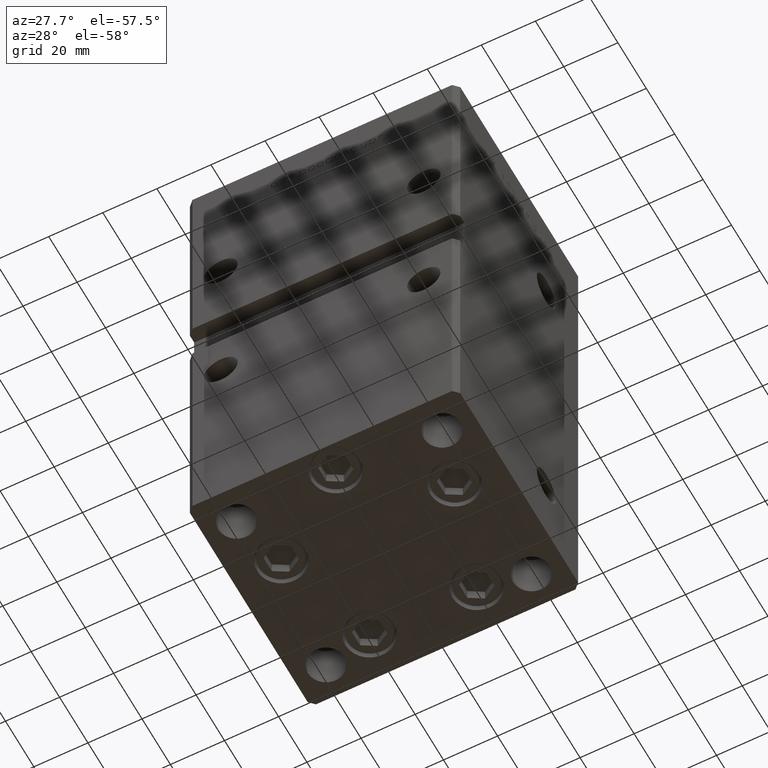
[diagram: clean part render]
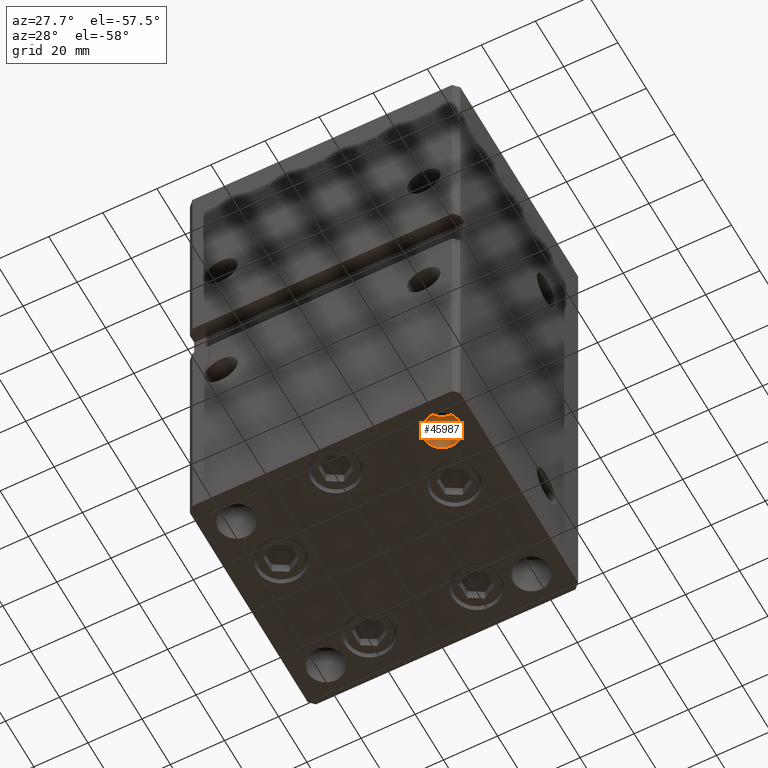
[diagram: same view with one face highlighted and labeled with its STEP entity id]
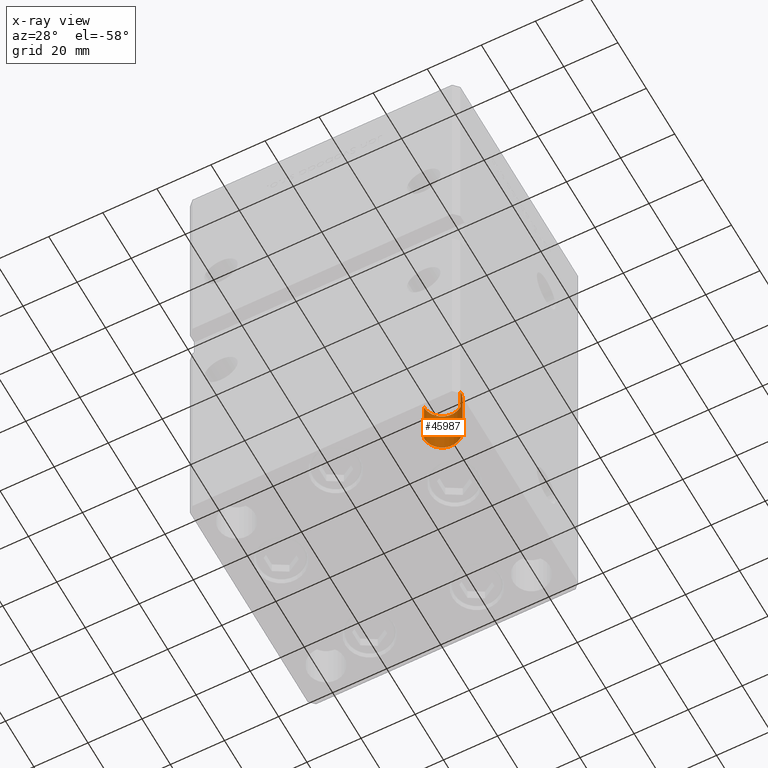
[diagram: x-ray of the same camera — body ghosted, the highlighted face saturated]
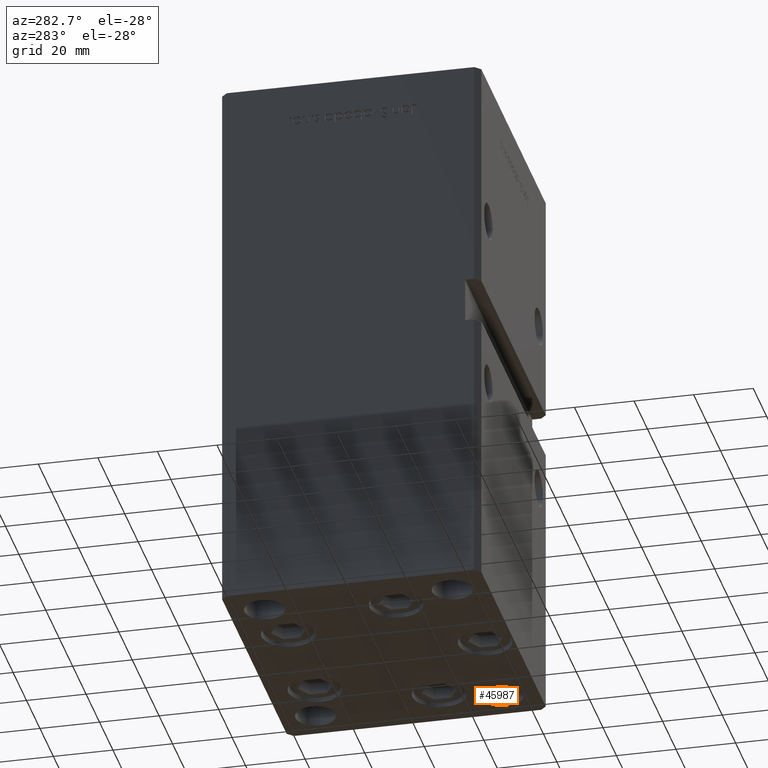
[diagram: same view with one face highlighted and labeled with its STEP entity id]
A machine part, auxiliary view. The second image highlights one B-rep face of the part: STEP entity #45987.
The next image is the same camera in x-ray: the body ghosted, the highlighted face saturated — about 0% of this face is hidden behind the body in this view.
A second angle (auxiliary view) of the same face is appended — the face is thin or edge-on in the first view.
In plain terms, the highlighted cylindrical surface (edge-blend (fillet) strip) has radius 6.75 mm, axis along (0, 0, -1).
Its self-contained STEP definition (entity closure, byte-faithful):
#2560 = CIRCLE ( 'NONE', #35195, 6.749999999999999112 ) ;
#5877 = VECTOR ( 'NONE', #27565, 1000.000000000000000 ) ;
#6625 = DIRECTION ( 'NONE',  ( 0.000000000000000000, -0.000000000000000000, -1.000000000000000000 ) ) ;
#8047 = CARTESIAN_POINT ( 'NONE',  ( -44.74999999999999289, -31.50000000000000000, -19.00000000000000000 ) ) ;
#10931 = DIRECTION ( 'NONE',  ( 1.000000000000000000, 0.000000000000000000, 0.000000000000000000 ) ) ;
#11705 = EDGE_CURVE ( 'NONE', #51971, #19983, #22985, .T. ) ;
#14407 = AXIS2_PLACEMENT_3D ( 'NONE', #15750, #52027, #27584 ) ;
#14447 = AXIS2_PLACEMENT_3D ( 'NONE', #39683, #31633, #19787 ) ;
#15230 = CYLINDRICAL_SURFACE ( 'NONE', #14447, 6.749999999999999112 ) ;
#15750 = CARTESIAN_POINT ( 'NONE',  ( -37.99999999999999289, -31.50000000000000000, -19.00000000000000000 ) ) ;
#15990 = LINE ( 'NONE', #48256, #5877 ) ;
#17079 = EDGE_LOOP ( 'NONE', ( #37198, #51014, #42515, #19190 ) ) ;
#17768 = EDGE_CURVE ( 'NONE', #51971, #39102, #15990, .T. ) ;
#19190 = ORIENTED_EDGE ( 'NONE', *, *, #21285, .F. ) ;
#19787 = DIRECTION ( 'NONE',  ( 1.000000000000000000, 0.000000000000000000, 0.000000000000000000 ) ) ;
#19788 = CARTESIAN_POINT ( 'NONE',  ( -37.99999999999999289, -31.50000000000000000, 0.000000000000000000 ) ) ;
#19983 = VERTEX_POINT ( 'NONE', #31755 ) ;
#20879 = DIRECTION ( 'NONE',  ( -0.000000000000000000, -0.000000000000000000, 1.000000000000000000 ) ) ;
#21285 = EDGE_CURVE ( 'NONE', #39102, #51776, #2560, .T. ) ;
#22985 = CIRCLE ( 'NONE', #14407, 6.749999999999999112 ) ;
#24051 = CARTESIAN_POINT ( 'NONE',  ( -44.74999999999999289, -31.50000000000000000, 0.000000000000000000 ) ) ;
#26362 = CARTESIAN_POINT ( 'NONE',  ( -31.24999999999999289, -31.50000000000000000, 0.000000000000000000 ) ) ;
#27565 = DIRECTION ( 'NONE',  ( -0.000000000000000000, -0.000000000000000000, 1.000000000000000000 ) ) ;
#27584 = DIRECTION ( 'NONE',  ( -1.000000000000000000, 0.000000000000000000, 0.000000000000000000 ) ) ;
#29217 = LINE ( 'NONE', #53147, #35783 ) ;
#31633 = DIRECTION ( 'NONE',  ( -0.000000000000000000, -0.000000000000000000, 1.000000000000000000 ) ) ;
#31755 = CARTESIAN_POINT ( 'NONE',  ( -31.24999999999999289, -31.50000000000000000, -19.00000000000000000 ) ) ;
#35195 = AXIS2_PLACEMENT_3D ( 'NONE', #19788, #6625, #10931 ) ;
#35783 = VECTOR ( 'NONE', #20879, 1000.000000000000000 ) ;
#37198 = ORIENTED_EDGE ( 'NONE', *, *, #17768, .F. ) ;
#39102 = VERTEX_POINT ( 'NONE', #24051 ) ;
#39683 = CARTESIAN_POINT ( 'NONE',  ( -37.99999999999999289, -31.50000000000000000, -19.00000000000000000 ) ) ;
#40863 = EDGE_CURVE ( 'NONE', #19983, #51776, #29217, .T. ) ;
#42515 = ORIENTED_EDGE ( 'NONE', *, *, #40863, .T. ) ;
#45987 = ADVANCED_FACE ( 'NONE', ( #48544 ), #15230, .F. ) ;
#48256 = CARTESIAN_POINT ( 'NONE',  ( -44.74999999999999289, -31.50000000000000000, -19.00000000000000000 ) ) ;
#48544 = FACE_OUTER_BOUND ( 'NONE', #17079, .T. ) ;
#51014 = ORIENTED_EDGE ( 'NONE', *, *, #11705, .T. ) ;
#51776 = VERTEX_POINT ( 'NONE', #26362 ) ;
#51971 = VERTEX_POINT ( 'NONE', #8047 ) ;
#52027 = DIRECTION ( 'NONE',  ( -0.000000000000000000, -0.000000000000000000, -1.000000000000000000 ) ) ;
#53147 = CARTESIAN_POINT ( 'NONE',  ( -31.24999999999999289, -31.50000000000000000, -19.00000000000000000 ) ) ;